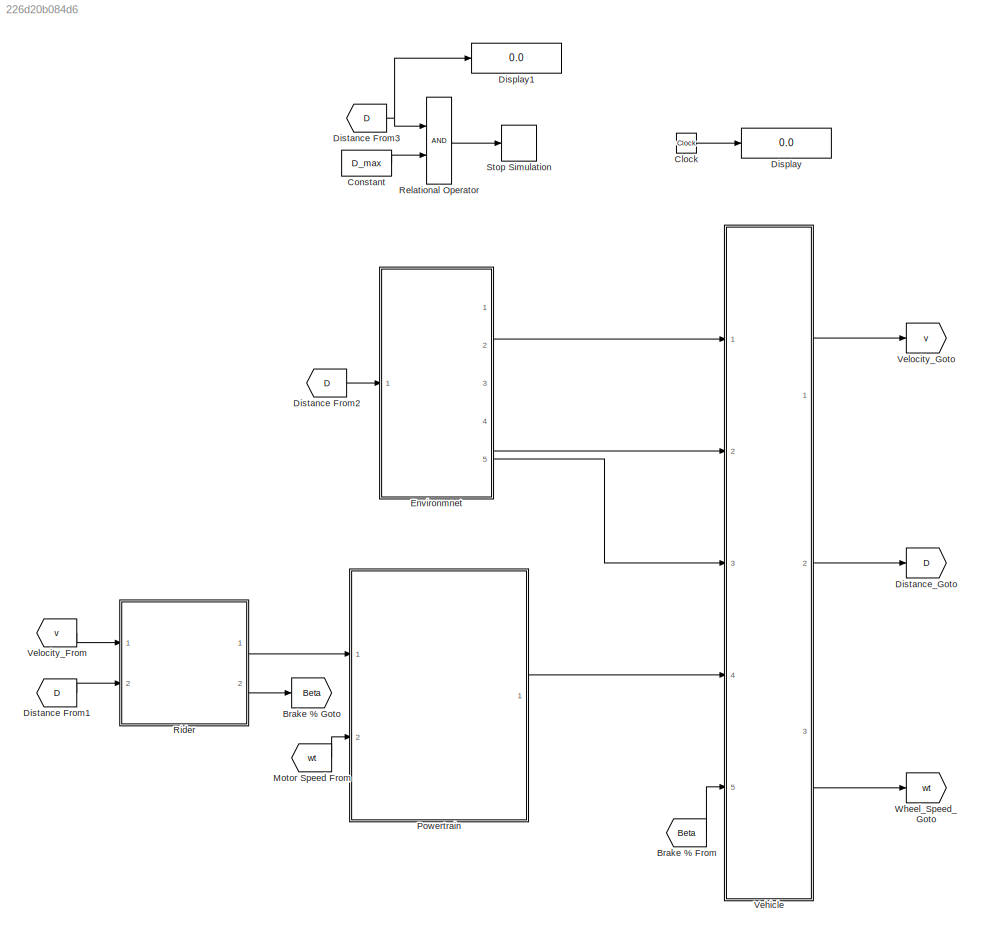
MODEL slx_226d20b084d6
KIND model
WORKSPACE source: MAT-file member
WORKSPACE D_max = 1
BLOCK [From] Brake % From
  GotoTag = Beta
BLOCK [Goto] Brake % Goto
  GotoTag = Beta
BLOCK [Clock] Clock
BLOCK [Constant] Constant
  Value = D_max
BLOCK [Display] Display
  Decimation = 1
  Ports = [1]
BLOCK [Display] Display1
  Decimation = 1
  Ports = [1]
BLOCK [From] Distance From1
  GotoTag = D
BLOCK [From] Distance From2
  GotoTag = D
BLOCK [From] Distance From3
  GotoTag = D
BLOCK [Goto] Distance_Goto
  GotoTag = D
BLOCK [ModelReference] Environmnet
  CopyOfModelName = Environment.slx
  DefaultDataLogging = on
  ModelNameDialog = Environment.slx
  ModelReferenceVersion = 1.13
  Ports = [1, 5]
BLOCK [From] Motor Speed From
  GotoTag = wt
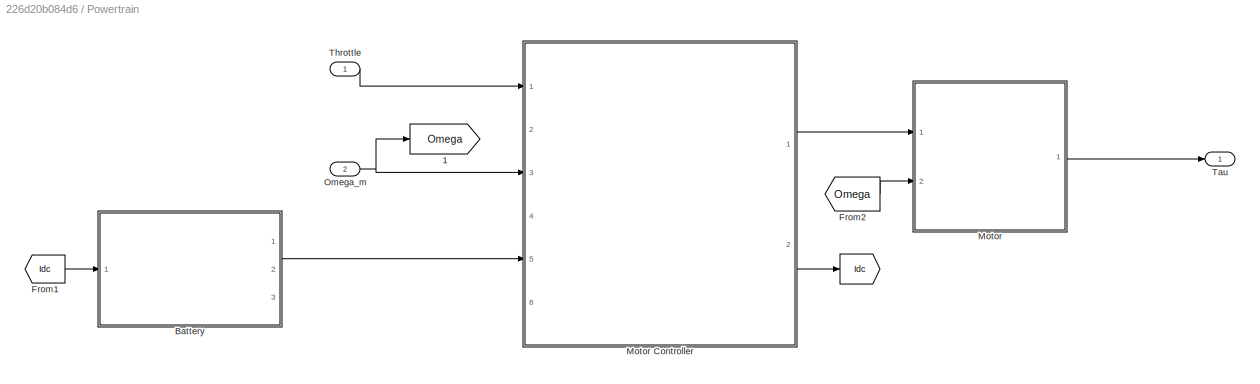
BLOCK [SubSystem] Powertrain
  Ports = [2, 1]
  RequestExecContextInheritance = off
BLOCK [Goto] Powertrain/ 
  GotoTag = Idc
BLOCK [Goto] Powertrain/ 1
  GotoTag = Omega
BLOCK [ModelReference] Powertrain/Battery
  CopyOfModelName = Battery_pack.slx
  DefaultDataLogging = on
  ModelNameDialog = Battery_pack.slx
  ModelReferenceVersion = 1.36
  Ports = [1, 3]
BLOCK [From] Powertrain/From1
  GotoTag = Idc
BLOCK [From] Powertrain/From2
  GotoTag = Omega
BLOCK [ModelReference] Powertrain/Motor
  CopyOfModelName = Motor.slx
  DefaultDataLogging = on
  ModelNameDialog = Motor.slx
  ModelReferenceVersion = 1.46
  Ports = [2, 1]
BLOCK [ModelReference] Powertrain/Motor Controller
  CopyOfModelName = Motor_controller.slx
  DefaultDataLogging = on
  ModelNameDialog = Motor_controller.slx
  ModelReferenceVersion = 1.16
  Ports = [6, 2]
BLOCK [Inport] Powertrain/Omega_m
  IconDisplay = Port number
  Port = 2
BLOCK [Outport] Powertrain/Tau
  IconDisplay = Port number
BLOCK [Inport] Powertrain/Throttle
  IconDisplay = Port number
BLOCK [RelationalOperator] Relational Operator
  InputSameDT = off
  OutDataTypeStr = boolean
  Ports = [2, 1]
  ZeroCross = off
BLOCK [ModelReference] Rider
  CopyOfModelName = Rider_PID.slx
  DefaultDataLogging = on
  ModelNameDialog = Rider_PID.slx
  ModelReferenceVersion = 1.12
  Ports = [2, 2]
BLOCK [Stop] Stop Simulation
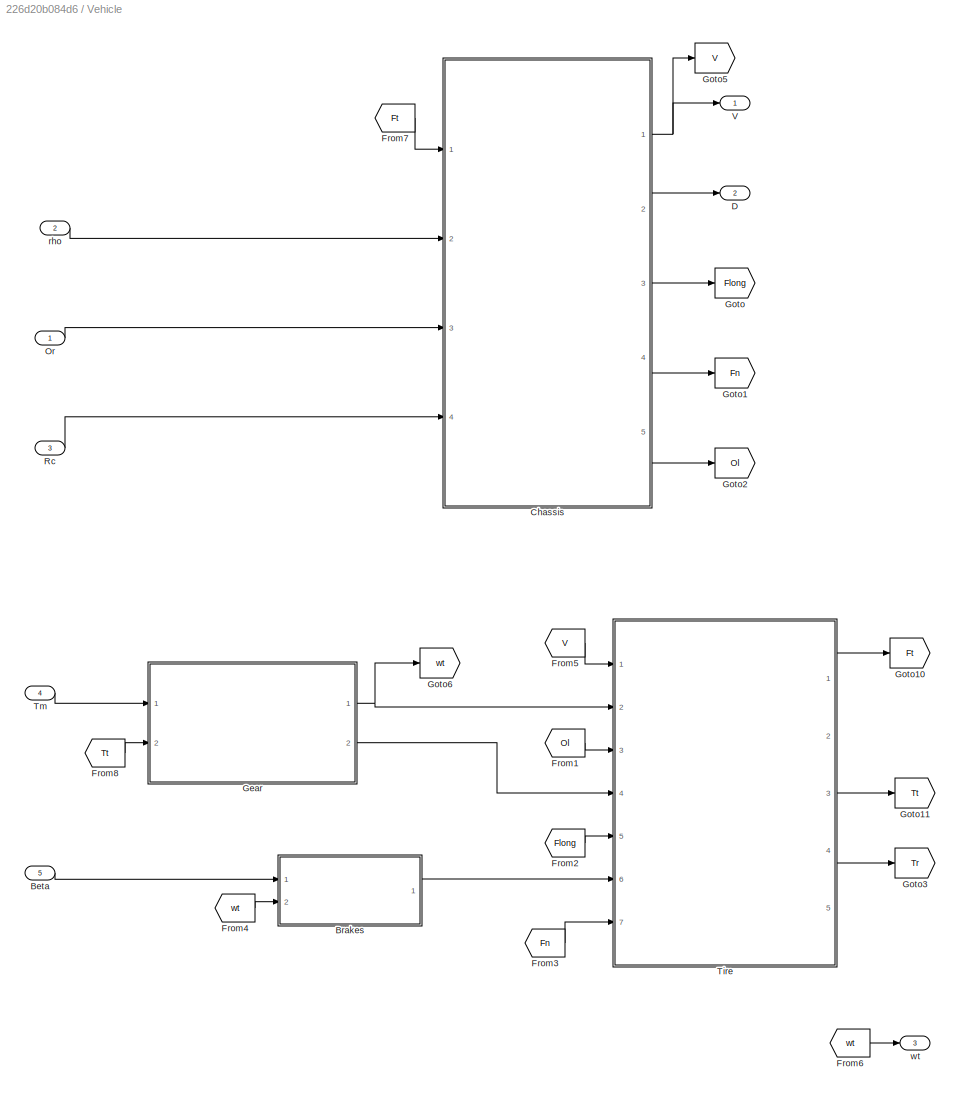
BLOCK [SubSystem] Vehicle
  Ports = [5, 3]
  RequestExecContextInheritance = off
BLOCK [Inport] Vehicle/Beta
  IconDisplay = Port number
  Port = 5
BLOCK [ModelReference] Vehicle/Brakes
  CopyOfModelName = Brakes.slx
  DefaultDataLogging = on
  ModelNameDialog = Brakes.slx
  ModelReferenceVersion = 1.11
  Ports = [2, 1]
BLOCK [ModelReference] Vehicle/Chassis
  CopyOfModelName = Chassis.slx
  DefaultDataLogging = on
  ModelNameDialog = Chassis.slx
  ModelReferenceVersion = 1.24
  Ports = [4, 5]
BLOCK [Outport] Vehicle/D
  IconDisplay = Port number
  Port = 2
BLOCK [From] Vehicle/From1
  GotoTag = Ol
BLOCK [From] Vehicle/From2
  GotoTag = Flong
BLOCK [From] Vehicle/From3
  GotoTag = Fn
BLOCK [From] Vehicle/From4
  GotoTag = wt
BLOCK [From] Vehicle/From5
  GotoTag = V
BLOCK [From] Vehicle/From6
  GotoTag = wt
BLOCK [From] Vehicle/From7
  GotoTag = Ft
BLOCK [From] Vehicle/From8
  GotoTag = Tt
BLOCK [ModelReference] Vehicle/Gear
  CopyOfModelName = Gear_Chain.slx
  DefaultDataLogging = on
  ModelNameDialog = Gear_Chain.slx
  ModelReferenceVersion = 1.21
  Ports = [2, 2]
BLOCK [Goto] Vehicle/Goto
  GotoTag = Flong
BLOCK [Goto] Vehicle/Goto1
  GotoTag = Fn
BLOCK [Goto] Vehicle/Goto10
  GotoTag = Ft
BLOCK [Goto] Vehicle/Goto11
  GotoTag = Tt
BLOCK [Goto] Vehicle/Goto2
  GotoTag = Ol
BLOCK [Goto] Vehicle/Goto3
  GotoTag = Tr
BLOCK [Goto] Vehicle/Goto5
  GotoTag = V
BLOCK [Goto] Vehicle/Goto6
  GotoTag = wt
BLOCK [Inport] Vehicle/Or
  IconDisplay = Port number
BLOCK [Inport] Vehicle/Rc
  IconDisplay = Port number
  Port = 3
BLOCK [ModelReference] Vehicle/Tire
  CopyOfModelName = Tires.slx
  DefaultDataLogging = on
  ModelNameDialog = Tires.slx
  ModelReferenceVersion = 1.89
  Ports = [7, 5]
BLOCK [Inport] Vehicle/Tm
  IconDisplay = Port number
  Port = 4
BLOCK [Outport] Vehicle/V
  IconDisplay = Port number
BLOCK [Inport] Vehicle/rho
  IconDisplay = Port number
  Port = 2
BLOCK [Outport] Vehicle/wt
  IconDisplay = Port number
  Port = 3
BLOCK [From] Velocity_From
  GotoTag = v
BLOCK [Goto] Velocity_Goto
  GotoTag = v
BLOCK [Goto] Wheel_Speed_Goto
  GotoTag = wt
LINE Brake % From:1 -> Vehicle:5
LINE Clock:1 -> Display:1
LINE Constant:1 -> Relational Operator:2
LINE Distance From1:1 -> Rider:2
LINE Distance From2:1 -> Environmnet:1
NET Distance From3:1 -> Display1:1, Relational Operator:1
LINE Environmnet:1 -> Vehicle:1
LINE Environmnet:4 -> Vehicle:2
LINE Environmnet:5 -> Vehicle:3
LINE Motor Speed From:1 -> Powertrain:2
LINE Powertrain/Battery:2 -> Powertrain/Motor Controller:5
LINE Powertrain/From1:1 -> Powertrain/Battery:1
LINE Powertrain/From2:1 -> Powertrain/Motor:2
LINE Powertrain/Motor Controller:1 -> Powertrain/Motor:1
LINE Powertrain/Motor Controller:2 -> Powertrain/ :1
LINE Powertrain/Motor:1 -> Powertrain/Tau:1
NET Powertrain/Omega_m:1 -> Powertrain/ 1:1, Powertrain/Motor Controller:3
LINE Powertrain/Throttle:1 -> Powertrain/Motor Controller:1
LINE Powertrain:1 -> Vehicle:4
LINE Relational Operator:1 -> Stop Simulation:1
LINE Rider:1 -> Powertrain:1
LINE Rider:2 -> Brake % Goto:1
LINE Vehicle/Beta:1 -> Vehicle/Brakes:1
LINE Vehicle/Brakes:1 -> Vehicle/Tire:6
NET Vehicle/Chassis:1 -> Vehicle/Goto5:1, Vehicle/V:1
LINE Vehicle/Chassis:2 -> Vehicle/D:1
LINE Vehicle/Chassis:3 -> Vehicle/Goto:1
LINE Vehicle/Chassis:4 -> Vehicle/Goto1:1
LINE Vehicle/Chassis:5 -> Vehicle/Goto2:1
LINE Vehicle/From1:1 -> Vehicle/Tire:3
LINE Vehicle/From2:1 -> Vehicle/Tire:5
LINE Vehicle/From3:1 -> Vehicle/Tire:7
LINE Vehicle/From4:1 -> Vehicle/Brakes:2
LINE Vehicle/From5:1 -> Vehicle/Tire:1
LINE Vehicle/From6:1 -> Vehicle/wt:1
LINE Vehicle/From7:1 -> Vehicle/Chassis:1
LINE Vehicle/From8:1 -> Vehicle/Gear:2
NET Vehicle/Gear:1 -> Vehicle/Goto6:1, Vehicle/Tire:2
LINE Vehicle/Gear:2 -> Vehicle/Tire:4
LINE Vehicle/Or:1 -> Vehicle/Chassis:3
LINE Vehicle/Rc:1 -> Vehicle/Chassis:4
LINE Vehicle/Tire:1 -> Vehicle/Goto10:1
LINE Vehicle/Tire:3 -> Vehicle/Goto11:1
LINE Vehicle/Tire:4 -> Vehicle/Goto3:1
LINE Vehicle/Tm:1 -> Vehicle/Gear:1
LINE Vehicle/rho:1 -> Vehicle/Chassis:2
LINE Vehicle:1 -> Velocity_Goto:1
LINE Vehicle:2 -> Distance_Goto:1
LINE Vehicle:3 -> Wheel_Speed_Goto:1
LINE Velocity_From:1 -> Rider:1
note: NET lines group one-source signal fan-out (src -> all destinations, sorted); 1:1 wires keep LINE
